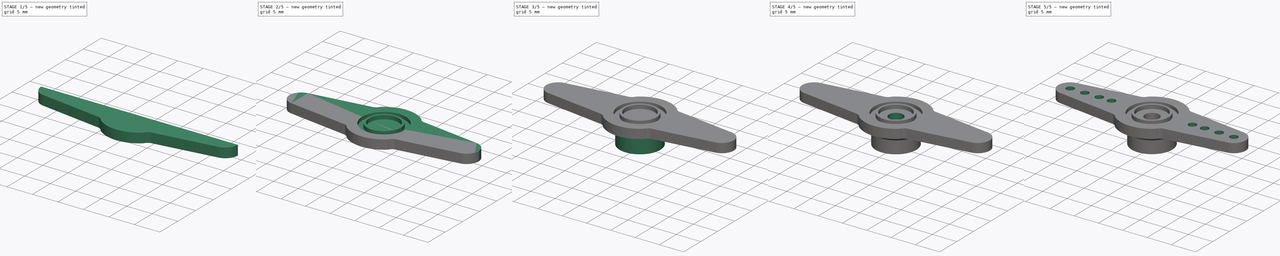
[diagram: build sequence overview — one tinted view per stage of 5, left to right]
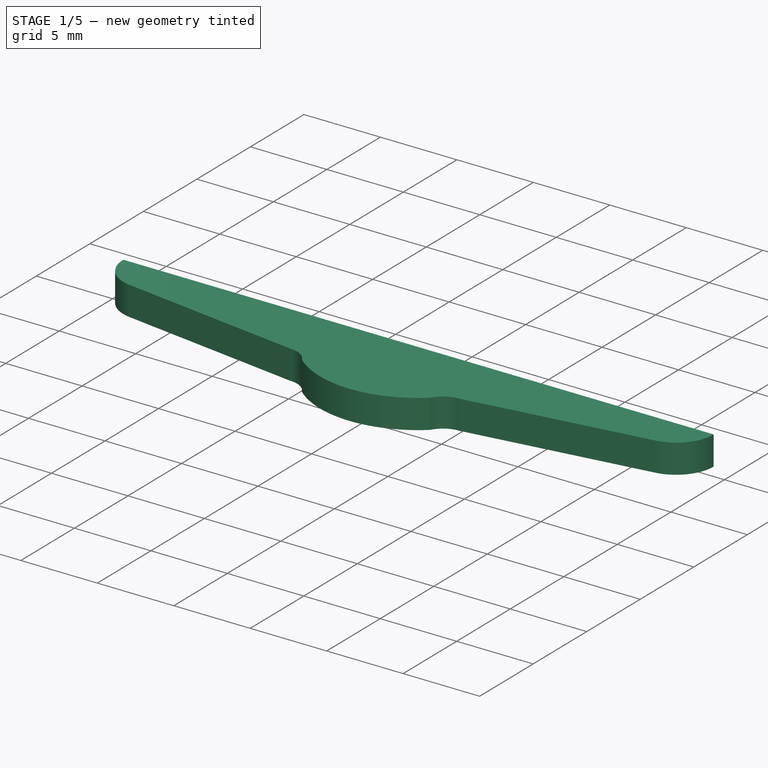
[diagram: stage 1 of 5 — iso view after this stage's code; geometry added in this stage tinted green]
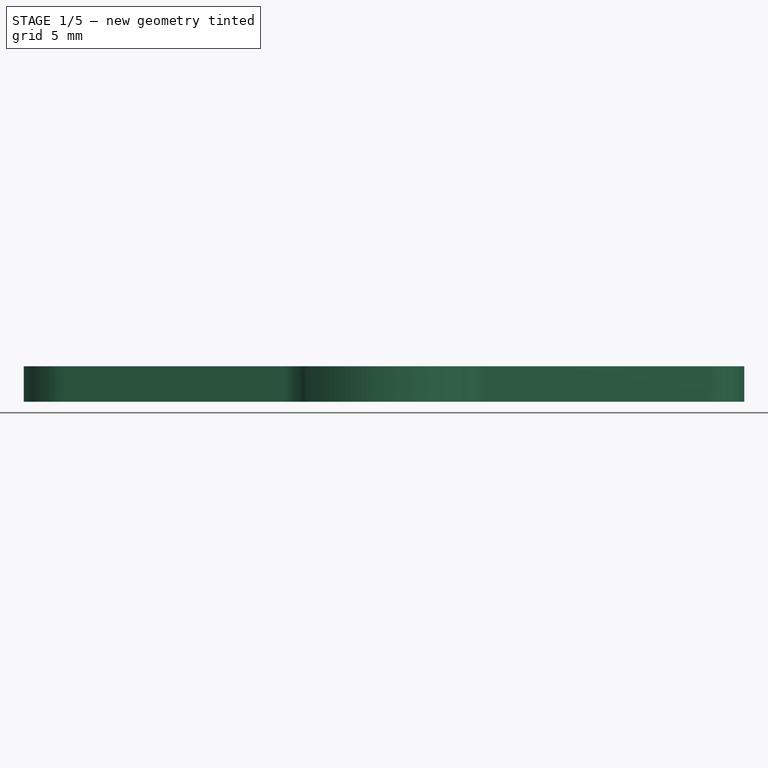
[diagram: stage 1 of 5 — front view after this stage's code; geometry added in this stage tinted green]
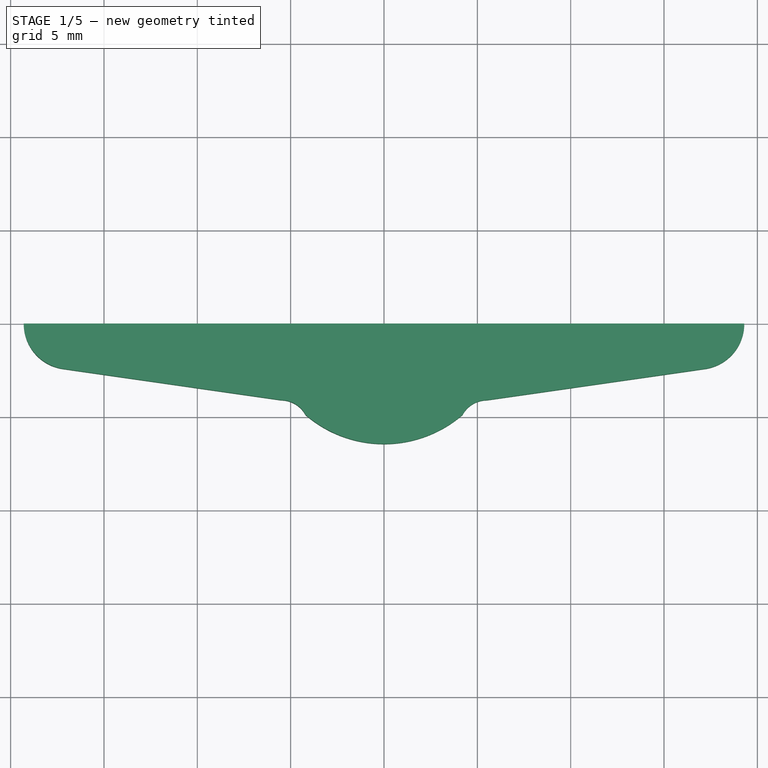
[diagram: stage 1 of 5 — top view after this stage's code; geometry added in this stage tinted green]
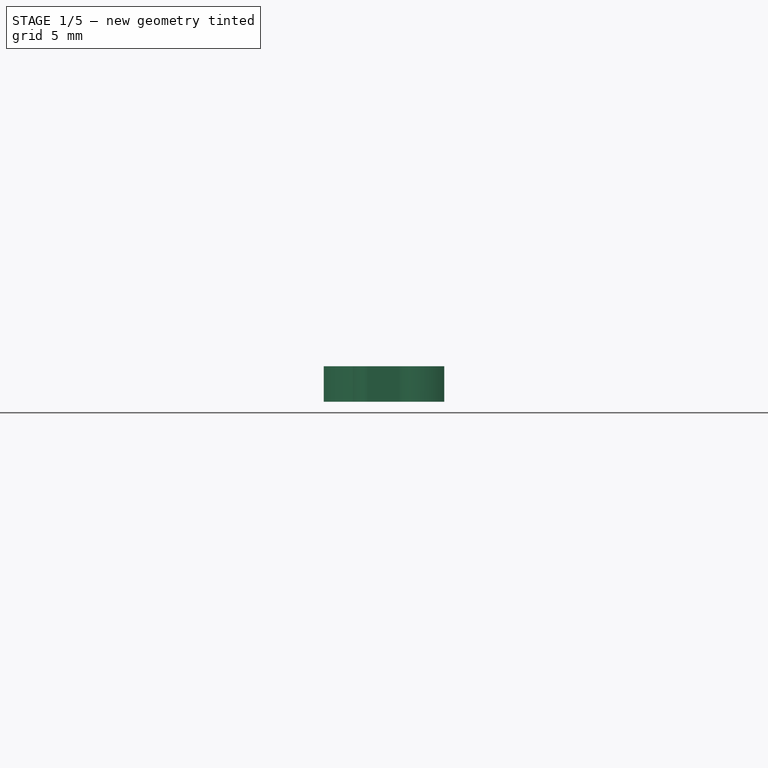
[diagram: stage 1 of 5 — right view after this stage's code; geometry added in this stage tinted green]
FCSTD DOCUMENT  (FreeCAD 0.14R3702 (Git))
Label: SM-S4303R-2-arms-small-horn
License: CC-BY 3.0
LicenseURL: http://creativecommons.org/licenses/by/3.0/
objects: Sketcher::SketchObject×9, PartDesign::Pocket×5, PartDesign::Pad×4, Part::Chamfer×4, Part::Mirroring×2, Part::MultiFuse×2, PartDesign::Mirrored×1, Part::Fillet×1
note: 37 computed .brp shape members not serialized (recipe doc carries the construction recipe); baked Part::Feature solids carry a one-line shape summary decoded from their .brp

FEATURE [Sketcher::SketchObject] Sketch  label="horn-top-left-quarter-sketch"
  sketch-geometry (8):
    g0: ArcOfCircle CenterX=0 CenterY=0 CenterZ=0 NormalX=0 NormalY=0 NormalZ=1 Radius=6.45 StartAngle=1.5708 EndAngle=2.27991
    g1: LineSegment StartX=-19.3 StartY=0 StartZ=0 EndX=0 EndY=0 EndZ=0
    g2: LineSegment StartX=0 StartY=6.45 StartZ=0 EndX=0 EndY=0 EndZ=0
    g3: ArcOfCircle CenterX=-16.85 CenterY=0 CenterZ=0 NormalX=0 NormalY=0 NormalZ=1 Radius=2.45 StartAngle=1.7133 EndAngle=3.14159
    g4: LineSegment [constr] StartX=-4.2 StartY=4.89515 StartZ=0 EndX=0 EndY=4.89515 EndZ=0
    g5: ArcOfCircle CenterX=-5.52408 CenterY=5.6 CenterZ=0 NormalX=0 NormalY=0 NormalZ=1 Radius=1.5 StartAngle=4.71239 EndAngle=5.79401
    g6: LineSegment [constr] StartX=-5.52408 StartY=5.6 StartZ=0 EndX=-5.52408 EndY=4.1 EndZ=0
    g7: LineSegment StartX=-17.1979 StartY=2.42517 StartZ=0 EndX=-5.52408 EndY=4.1 EndZ=0
  constraints (26):
    c: Coincident(g0,g-1)
    c: PointOnObject(g0,g-2)
    c: Horizontal(g1)
    c: Vertical(g2)
    c: Coincident(g2,g-1)
    c: Coincident(g2,g0)
    c: Coincident(g1,g-1)
    c: Radius(g0) = 6.45
    c: DistanceX(g1) = 19.3
    c: PointOnObject(g3,g-1)
    c: PointOnObject(g3,g-1)
    c: Coincident(g3,g1)
    c: PointOnObject(g4,g2)
    c: Coincident(g4,g0)
    c: Horizontal(g4)
    c: DistanceX(g4) = 4.2
    c: Vertical(g6)
    c: Coincident(g6,g5)
    c: Coincident(g6,g5)
    c: Coincident(g5,g0)
    c: Coincident(g7,g3)
    c: Coincident(g7,g5)
    c: Tangent(g7,g3)
    c: Radius(g3) = 2.45
    c: Radius(g5) = 1.5
    c: DistanceY(g-1,g5) = 4.1
FEATURE [PartDesign::Pad] Pad  label="horn-top-left-quarter"
  Length = 1.9
  Length2 = 100
  Sketch = -> Sketch
  Type = 0
FEATURE [Part::Mirroring] Part__Mirroring  label="horn-top-right-quarter (Mirror #1)"
  Base = (0,0,0)
  Normal = (1,0,0)
  Source = -> Pad
FEATURE [Part::MultiFuse] Fusion  label="horn-top-half"
  Shapes = -> [Part__Mirroring,Pad]
FEATURE [Part::Mirroring] Part__Mirroring001  label="horn-bottom-half"
  Base = (0,0,0)
  Normal = (0,1,0)
  Source = -> Fusion
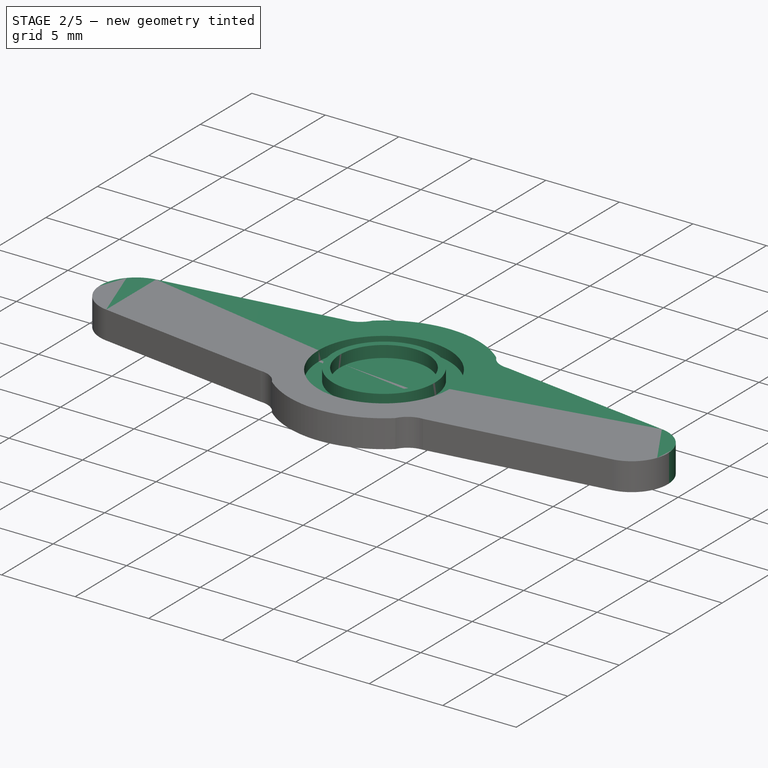
[diagram: stage 2 of 5 — iso view after this stage's code; geometry added in this stage tinted green]
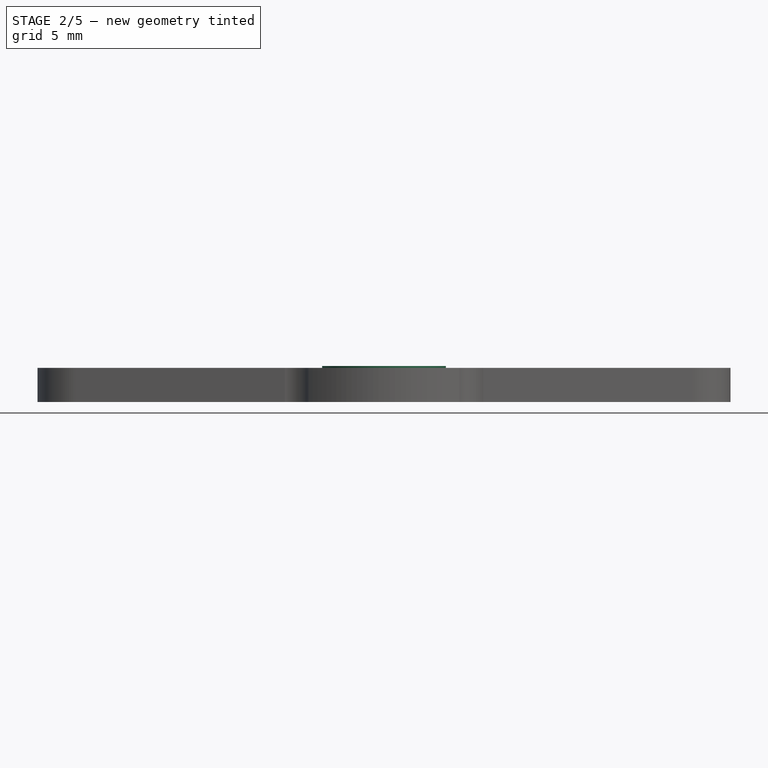
[diagram: stage 2 of 5 — front view after this stage's code; geometry added in this stage tinted green]
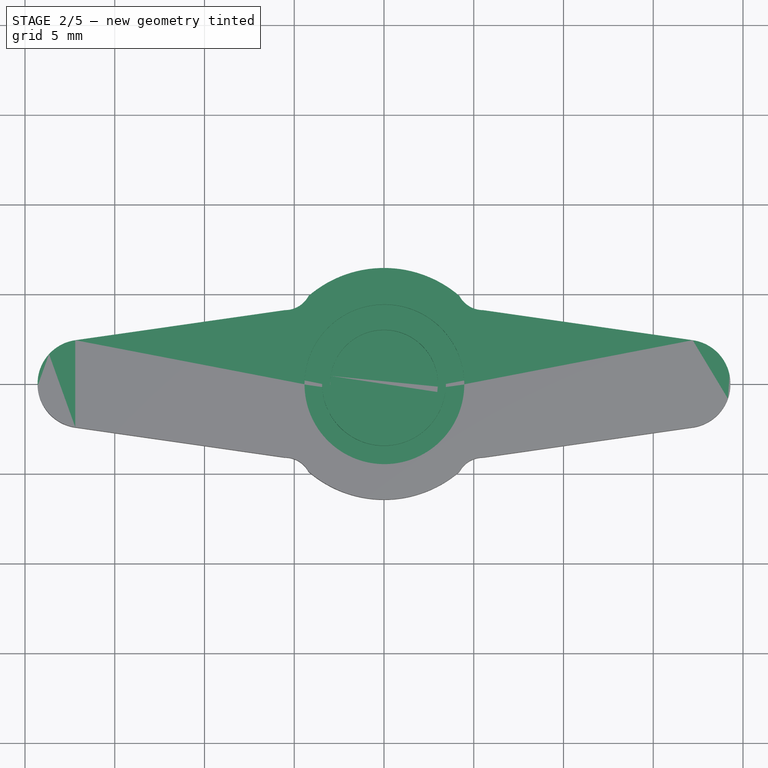
[diagram: stage 2 of 5 — top view after this stage's code; geometry added in this stage tinted green]
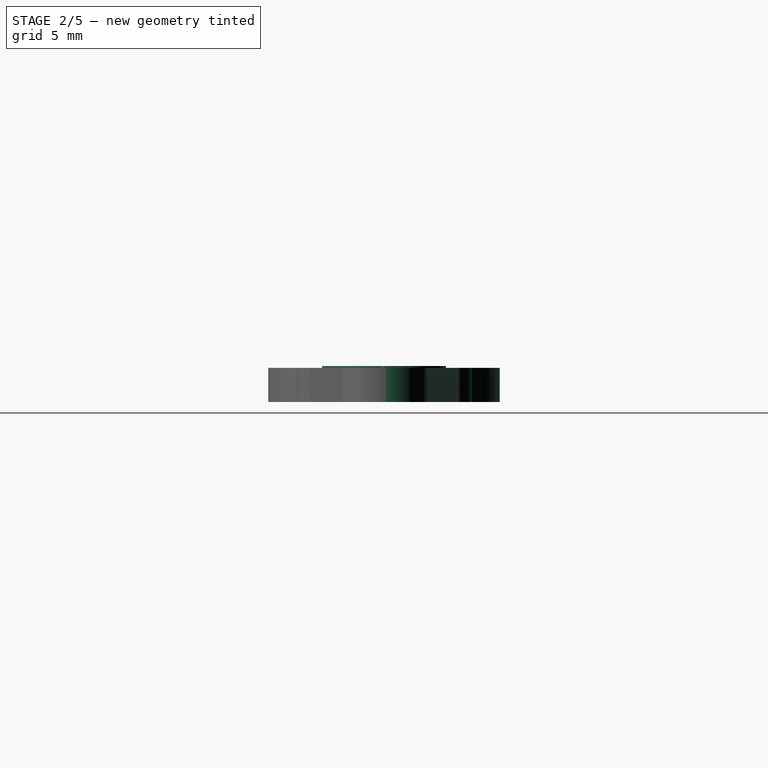
[diagram: stage 2 of 5 — right view after this stage's code; geometry added in this stage tinted green]
FEATURE [Part::MultiFuse] Fusion001  label="Horn-body-1"
  Shapes = -> [Part__Mirroring001,Fusion]
FEATURE [Sketcher::SketchObject] Sketch001
  Placement = pos=(0,0,1.9) rot=(0,0,1;0rad)
  Support = -> Fusion001 [Face12]
  sketch-geometry (1):
    g0: Circle CenterX=0.021849 CenterY=-0.030682 CenterZ=0 NormalX=0 NormalY=0 NormalZ=1 Radius=4.45
  constraints (1):
    c: Radius(g0) = 4.45
FEATURE [PartDesign::Pocket] Pocket
  Length = 0.7
  Sketch = -> Sketch001
  Type = 0
FEATURE [Sketcher::SketchObject] Sketch002  label="top-1-sketch"
  Placement = pos=(0,0,1.2) rot=(0,0,1;0rad)
  Support = -> Pocket [Face16]
  sketch-geometry (1):
    g0: Circle CenterX=0 CenterY=0 CenterZ=0 NormalX=0 NormalY=0 NormalZ=1 Radius=3.45
  constraints (2):
    c: Radius(g0) = 3.45
    c: Coincident(g0,g-1)
FEATURE [PartDesign::Pad] Pad001  label="top-1"
  Length = 0.8
  Length2 = 100
  Sketch = -> Sketch002
  Type = 0
FEATURE [Sketcher::SketchObject] Sketch003  label="top-2-sketch"
  Placement = pos=(0,0,2) rot=(0,0,1;0rad)
  Support = -> Pad001 [Face18]
  sketch-geometry (1):
    g0: Circle CenterX=0 CenterY=0 CenterZ=0 NormalX=0 NormalY=0 NormalZ=1 Radius=3
  constraints (2):
    c: Radius(g0) = 3
    c: Coincident(g0,g-1)
FEATURE [PartDesign::Pocket] Pocket001  label="top-2"
  Length = 0.8
  Sketch = -> Sketch003
  Type = 0
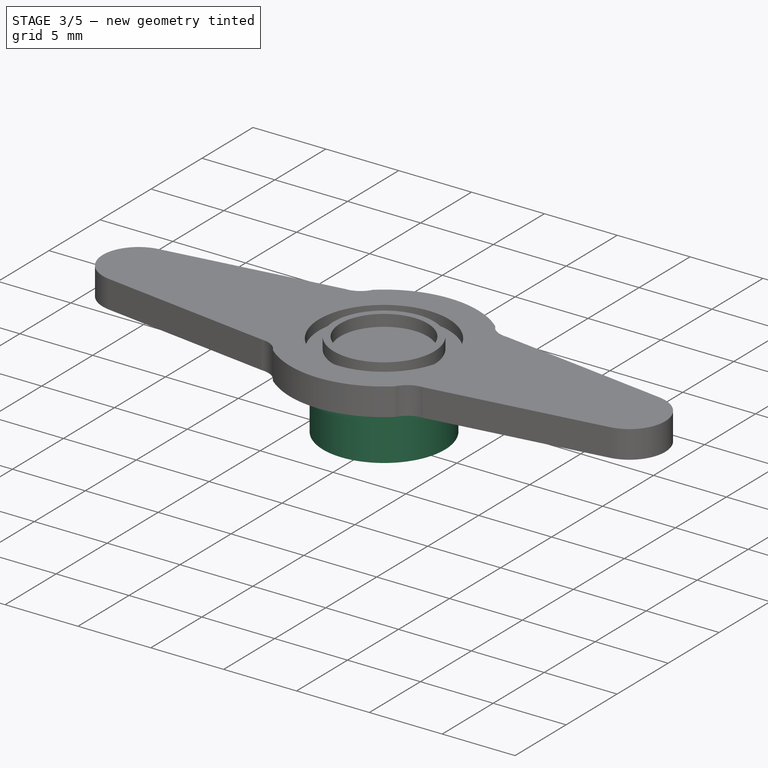
[diagram: stage 3 of 5 — iso view after this stage's code; geometry added in this stage tinted green]
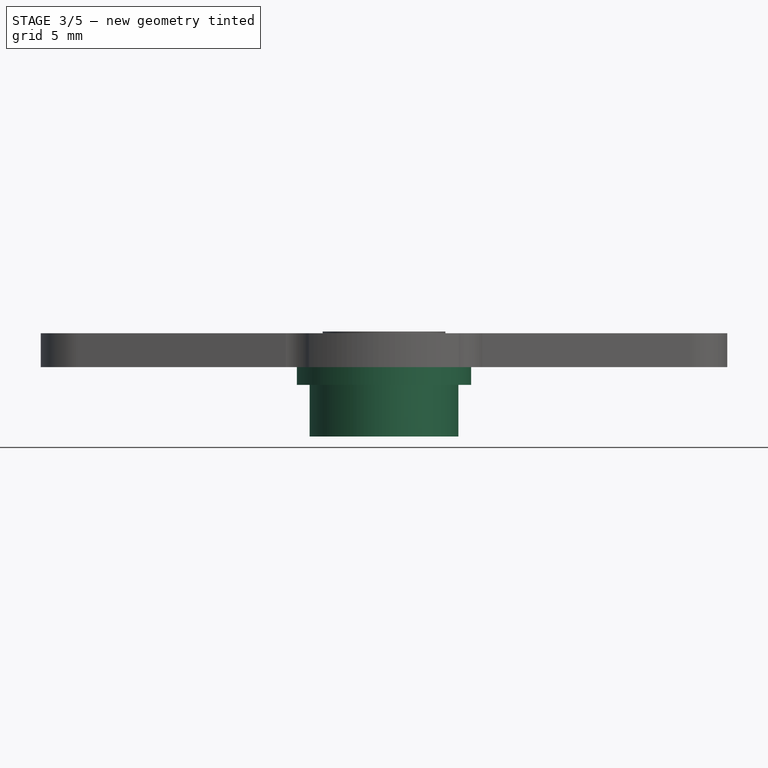
[diagram: stage 3 of 5 — front view after this stage's code; geometry added in this stage tinted green]
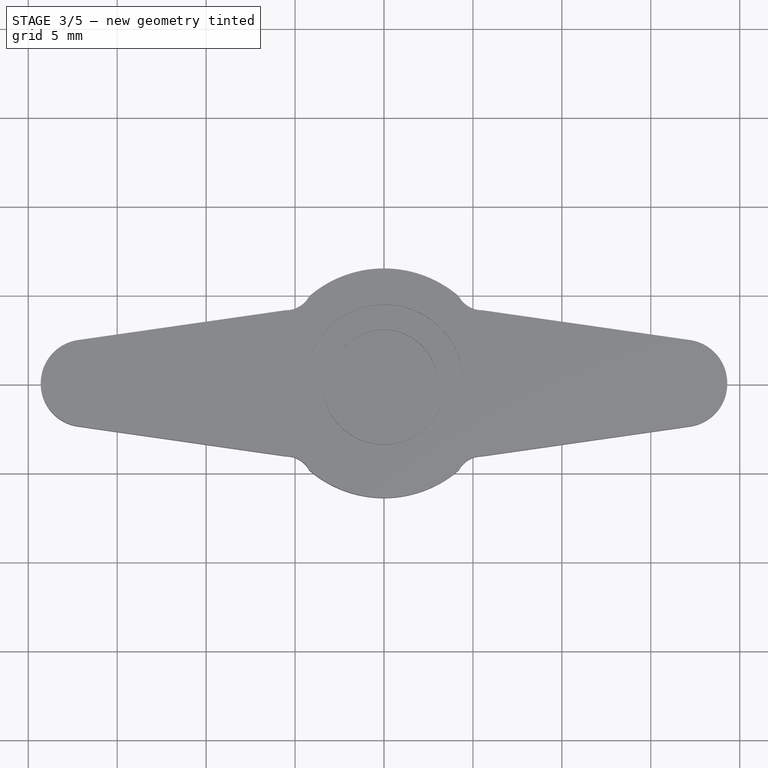
[diagram: stage 3 of 5 — top view after this stage's code; geometry added in this stage tinted green]
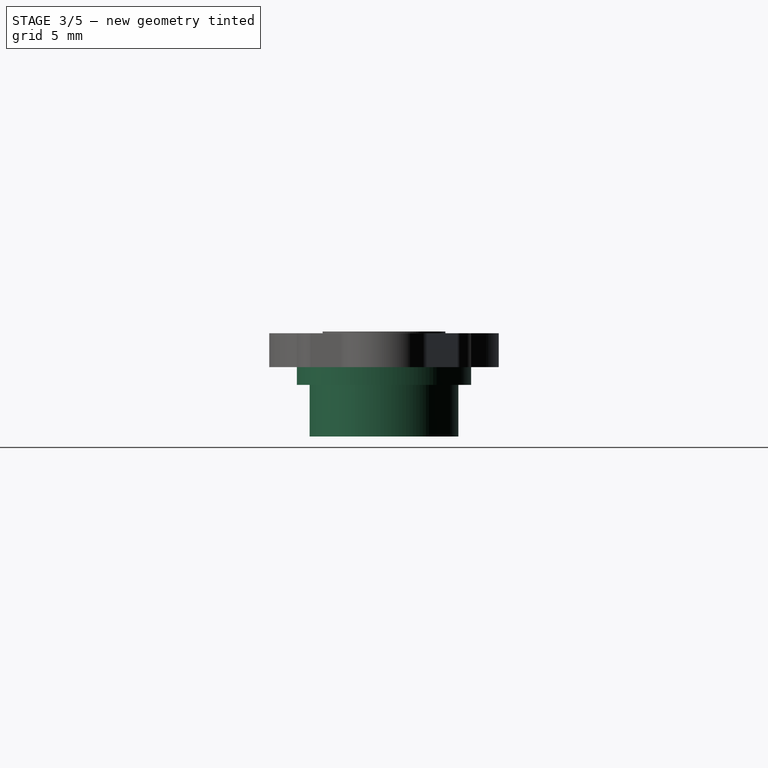
[diagram: stage 3 of 5 — right view after this stage's code; geometry added in this stage tinted green]
FEATURE [Sketcher::SketchObject] Sketch004  label="bottom-1-sketch"
  Placement = pos=(0,0,0) rot=(1,0,0;3.14159rad)
  Support = -> Pocket001 [Face4]
  sketch-geometry (1):
    g0: Circle CenterX=0 CenterY=0 CenterZ=0 NormalX=0 NormalY=0 NormalZ=1 Radius=4.9
  constraints (1):
    c: Radius(g0) = 4.9
FEATURE [PartDesign::Pad] Pad002  label="bottom-1"
  Length = 1
  Length2 = 100
  Sketch = -> Sketch004
  Type = 0
FEATURE [Sketcher::SketchObject] Sketch005  label="bottom-2-sketch"
  Placement = pos=(0,0,-1) rot=(1,0,0;3.14159rad)
  Support = -> Pad002 [Face17]
  sketch-geometry (1):
    g0: Circle CenterX=0 CenterY=0 CenterZ=0 NormalX=0 NormalY=0 NormalZ=1 Radius=4.185
  constraints (2):
    c: Coincident(g0,g-1)
    c: Radius(g0) = 4.185
FEATURE [PartDesign::Pad] Pad003  label="bottom-2"
  Length = 2.9
  Length2 = 100
  Sketch = -> Sketch005
  Type = 0
FEATURE [Sketcher::SketchObject] Sketch006  label="bottom-3-sketch"
  Placement = pos=(0,0,-3.9) rot=(1,0,0;3.14159rad)
  Support = -> Pad003 [Face21]
  sketch-geometry (1):
    g0: Circle CenterX=0 CenterY=0 CenterZ=0 NormalX=0 NormalY=0 NormalZ=1 Radius=2.95
  constraints (2):
    c: Coincident(g0,g-1)
    c: Radius(g0) = 2.95
FEATURE [PartDesign::Pocket] Pocket002  label="bottom-3"
  Length = 3.9
  Sketch = -> Sketch006
  Type = 0
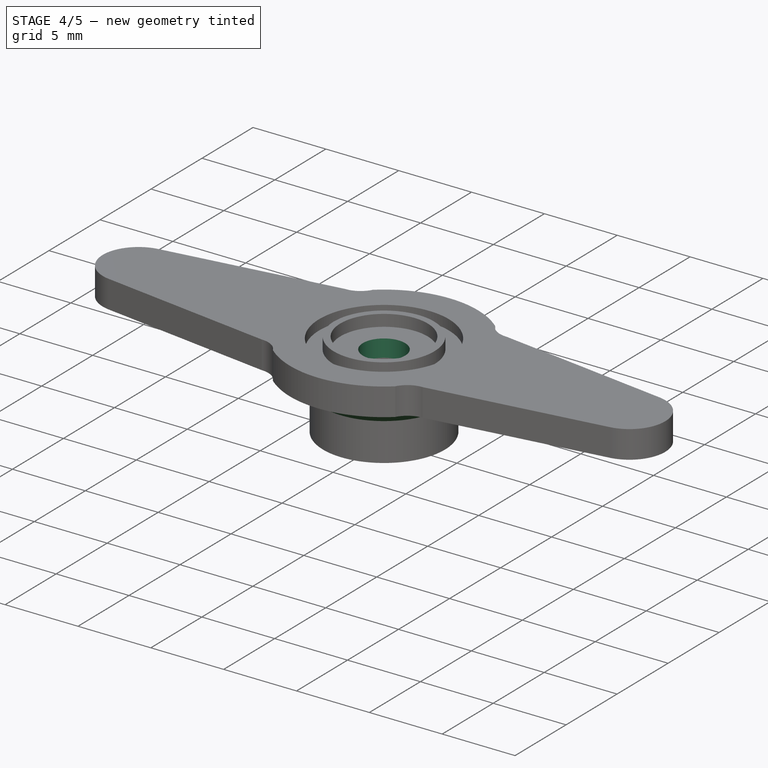
[diagram: stage 4 of 5 — iso view after this stage's code; geometry added in this stage tinted green]
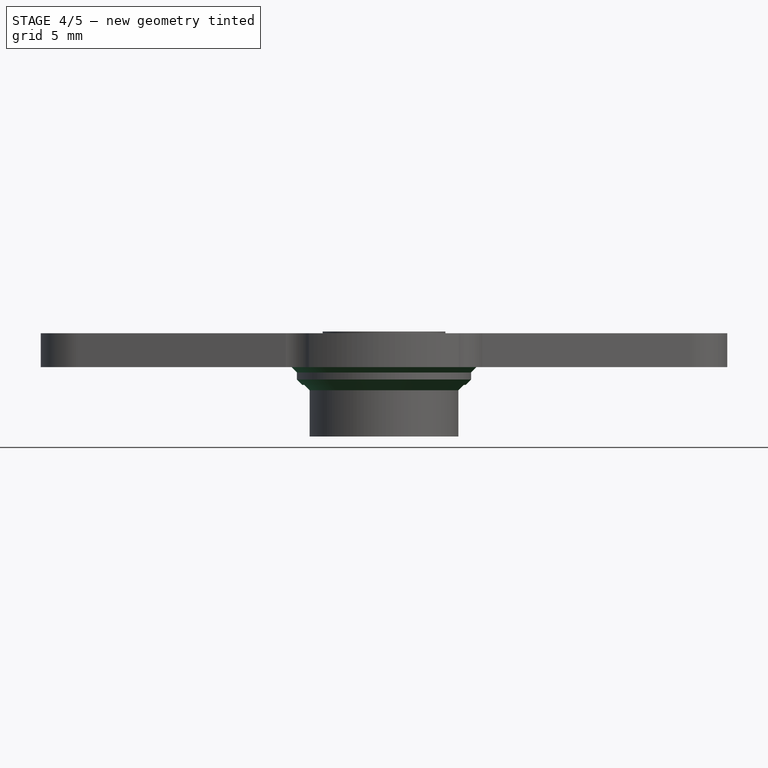
[diagram: stage 4 of 5 — front view after this stage's code; geometry added in this stage tinted green]
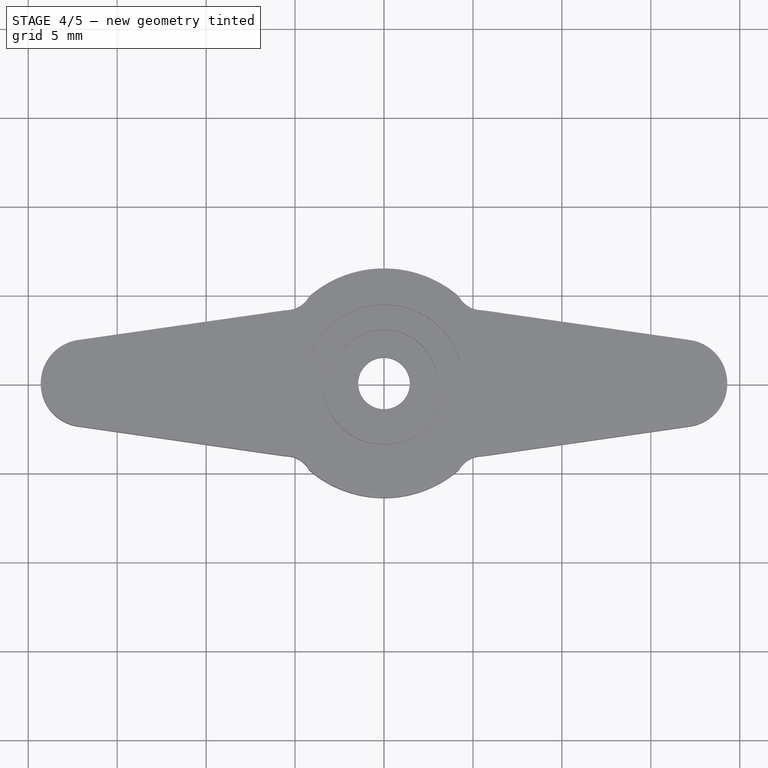
[diagram: stage 4 of 5 — top view after this stage's code; geometry added in this stage tinted green]
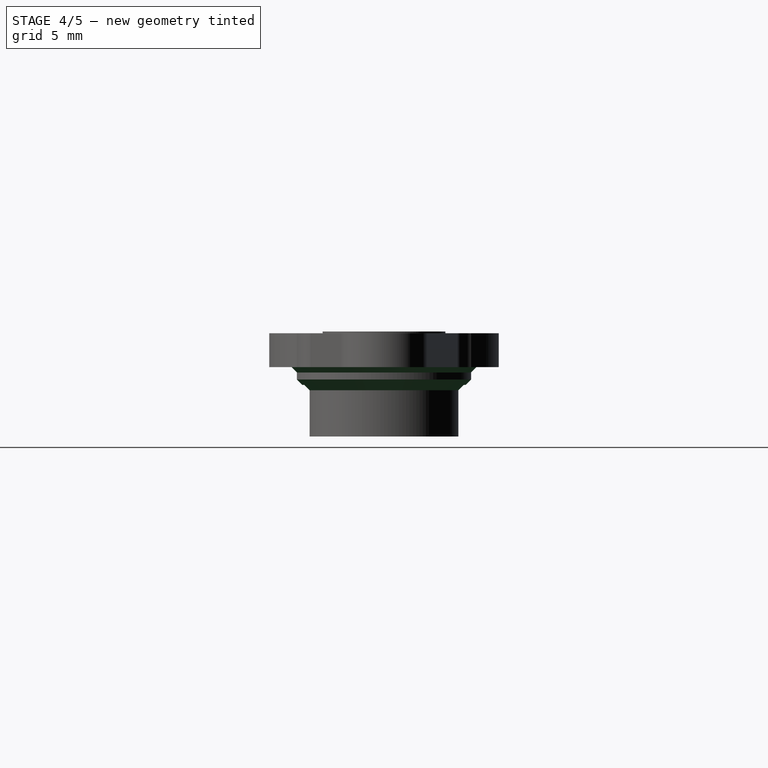
[diagram: stage 4 of 5 — right view after this stage's code; geometry added in this stage tinted green]
FEATURE [Sketcher::SketchObject] Sketch007  label="horn-screw-drill-sketch"
  Placement = pos=(0,0,0) rot=(1,0,0;3.14159rad)
  Support = -> Pocket002 [Face25]
  sketch-geometry (1):
    g0: Circle CenterX=0 CenterY=0 CenterZ=0 NormalX=0 NormalY=0 NormalZ=1 Radius=1.45
  constraints (1):
    c: Radius(g0) = 1.45
FEATURE [PartDesign::Pocket] Pocket003  label="horn-screw-drill"
  Length = 5
  Sketch = -> Sketch007
  Type = 1
FEATURE [Part::Chamfer] Chamfer
  Base = -> Pocket003
  Edges = 1 edges r=0.3: [Edge25]
FEATURE [Part::Chamfer] Chamfer001
  Base = -> Chamfer
  Edges = 1 edges r=0.3: [Edge51]
FEATURE [Part::Chamfer] Chamfer002  label="horn-body-2"
  Base = -> Chamfer001
  Edges = 1 edges r=0.3: [Edge2]
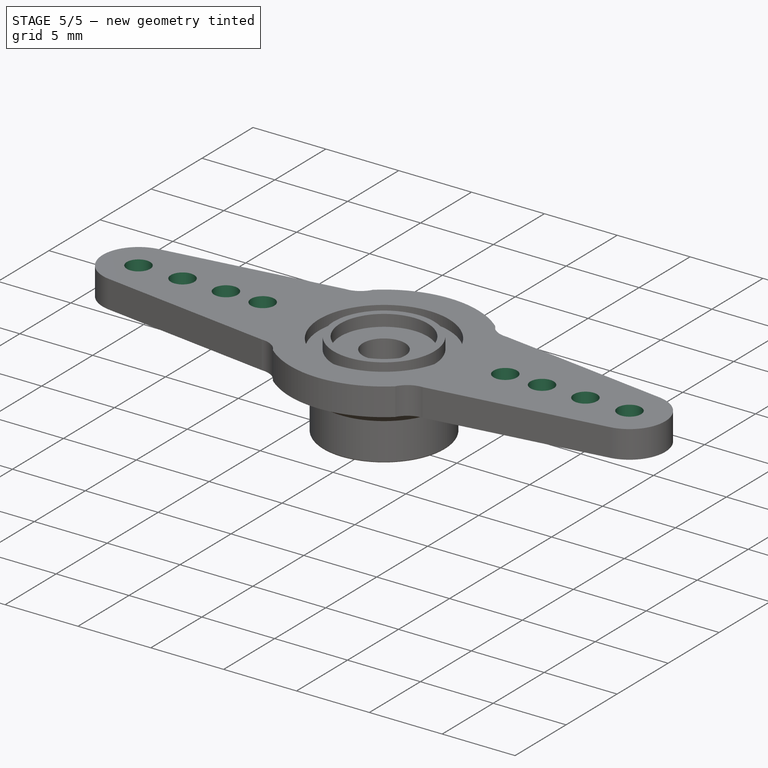
[diagram: stage 5 of 5 — iso view after this stage's code; geometry added in this stage tinted green]
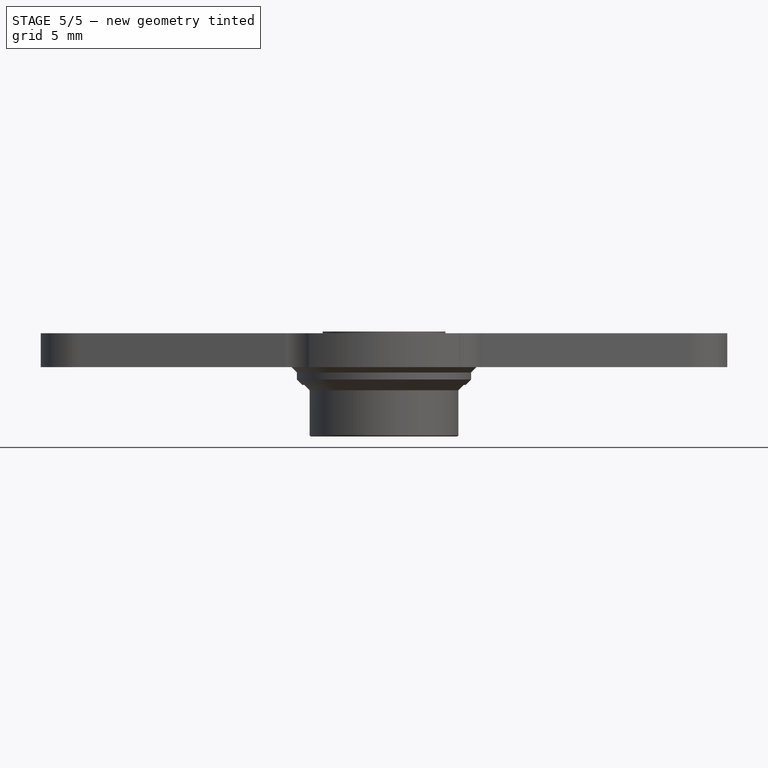
[diagram: stage 5 of 5 — front view after this stage's code; geometry added in this stage tinted green]
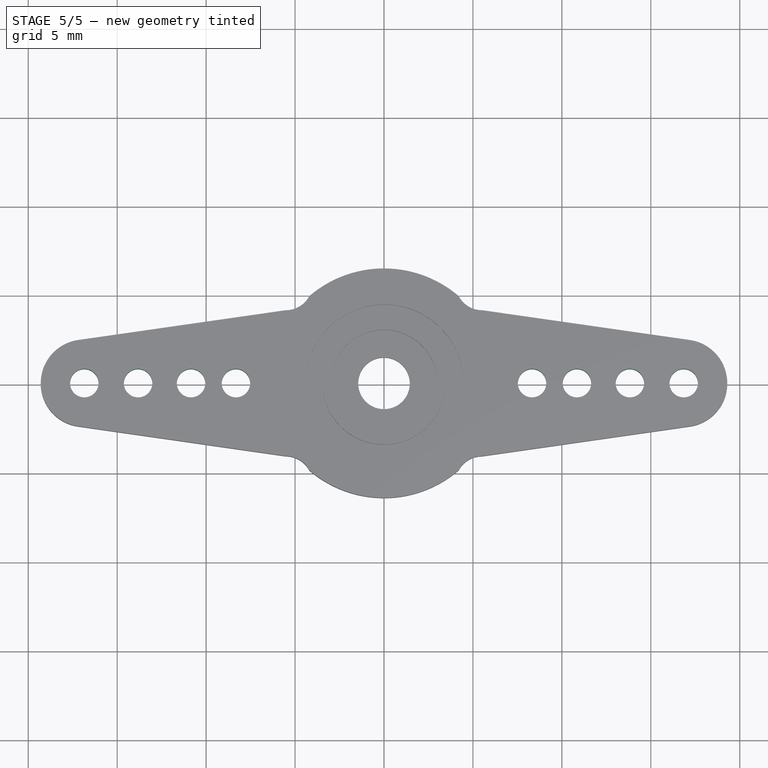
[diagram: stage 5 of 5 — top view after this stage's code; geometry added in this stage tinted green]
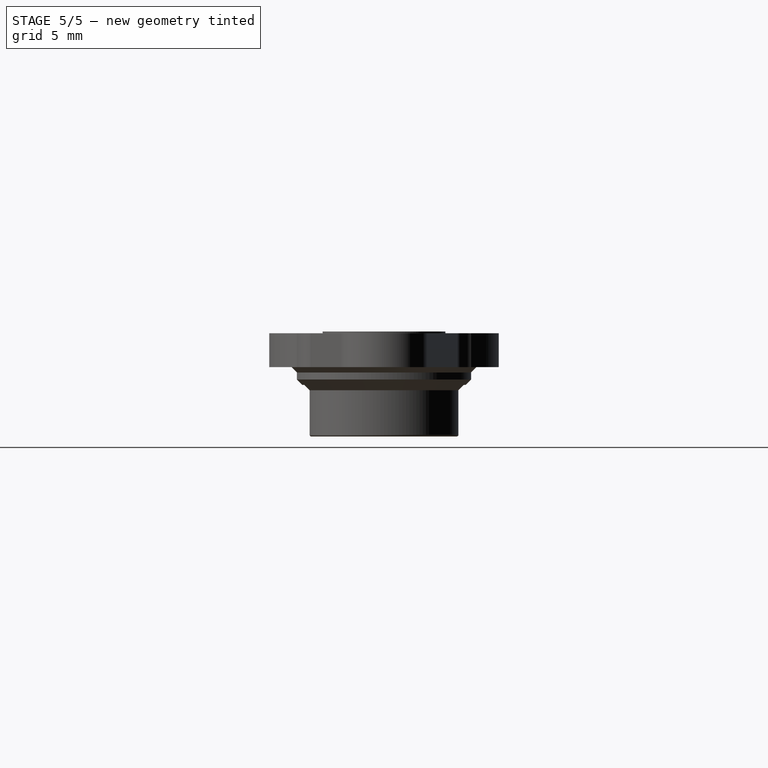
[diagram: stage 5 of 5 — right view after this stage's code; geometry added in this stage tinted green]
FEATURE [Sketcher::SketchObject] Sketch008  label="horn-drills-left-sketch"
  Placement = pos=(0,0,1.9) rot=(0,0,1;0rad)
  Support = -> Chamfer002 [Face23]
  sketch-geometry (4):
    g0: Circle CenterX=-16.85 CenterY=0 CenterZ=0 NormalX=0 NormalY=0 NormalZ=1 Radius=0.8
    g1: Circle CenterX=-13.825 CenterY=0 CenterZ=0 NormalX=0 NormalY=0 NormalZ=1 Radius=0.8
    g2: Circle CenterX=-10.85 CenterY=0 CenterZ=0 NormalX=0 NormalY=0 NormalZ=1 Radius=0.8
    g3: Circle CenterX=-8.325 CenterY=0 CenterZ=0 NormalX=0 NormalY=0 NormalZ=1 Radius=0.8
  constraints (12):
    c: PointOnObject(g1,g-1)
    c: PointOnObject(g2,g-1)
    c: PointOnObject(g3,g-1)
    c: Equal(g0,g1)
    c: Equal(g1,g2)
    c: Equal(g2,g3)
    c: PointOnObject(g0,g-1)
    c: DistanceX(g-1,g0) = -16.85
    c: Radius(g0) = 0.8
    c: DistanceX(g-1,g1) = -13.825
    c: DistanceX(g-1,g2) = -10.85
    c: DistanceX(g-1,g3) = -8.325
FEATURE [PartDesign::Pocket] Pocket004  label="horn-drills-left"
  Length = 5
  Sketch = -> Sketch008
  Type = 1
FEATURE [PartDesign::Mirrored] Mirrored  label="horn-final"
  MirrorPlane = -> Sketch008 [V_Axis]
  Originals = -> [Pocket004]
FEATURE [Part::Fillet] Fillet
  Base = -> Mirrored
  Edges = 1 edges r=0.1: [Edge10]
FEATURE [Part::Chamfer] Chamfer003  label="horn-final001"
  Base = -> Fillet
  Edges = 1 edges r=0.1: [Edge8]
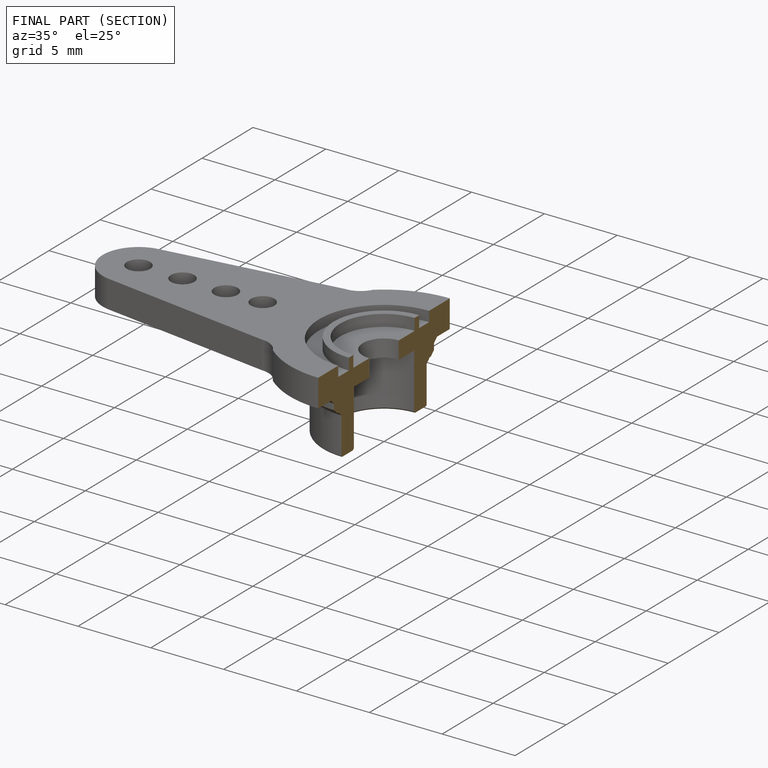
[diagram: finished part — half-section view (interior)]
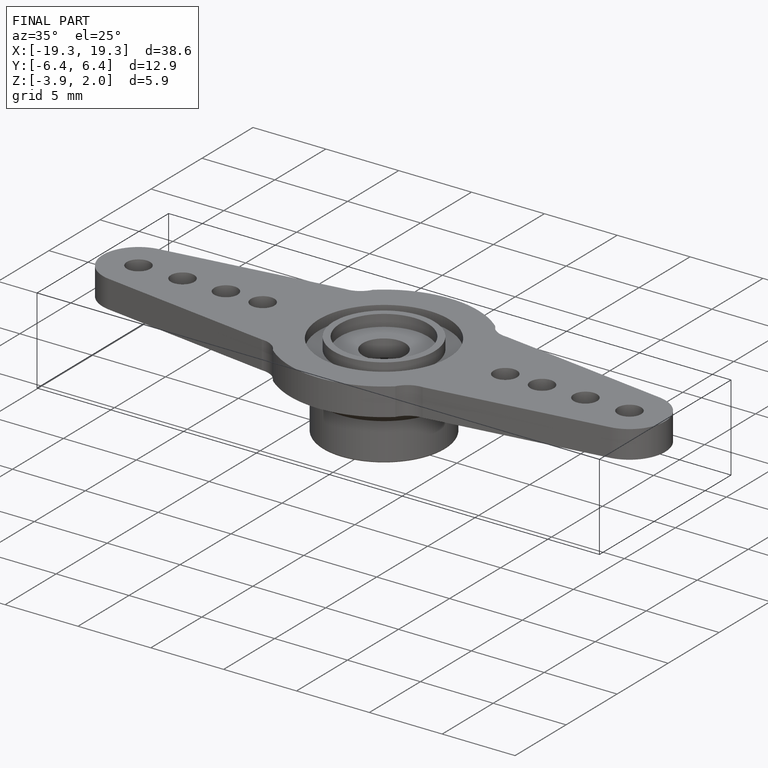
[diagram: finished part — iso view with bounding-box wireframe]
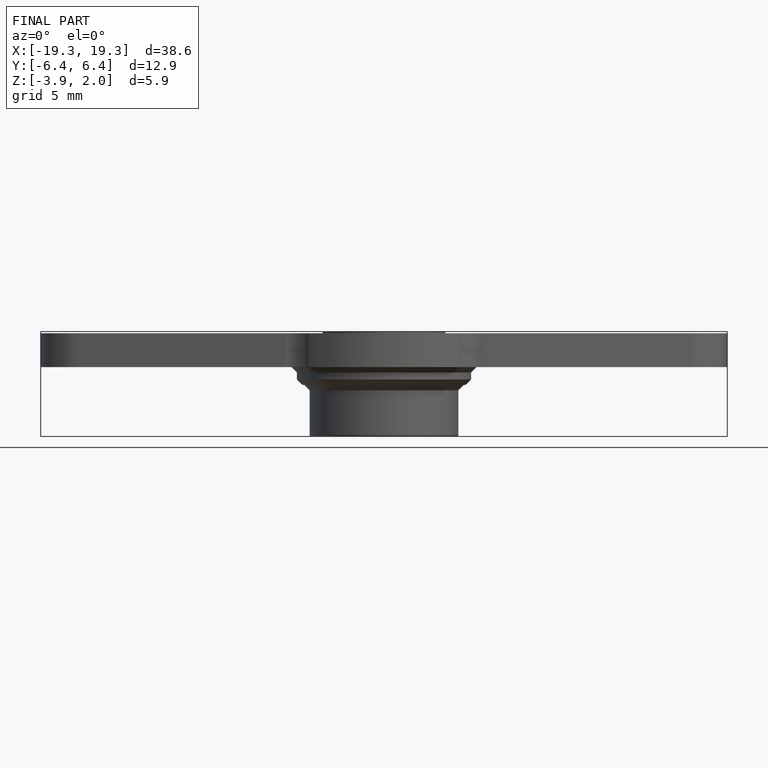
[diagram: finished part — front view with bounding-box wireframe]
